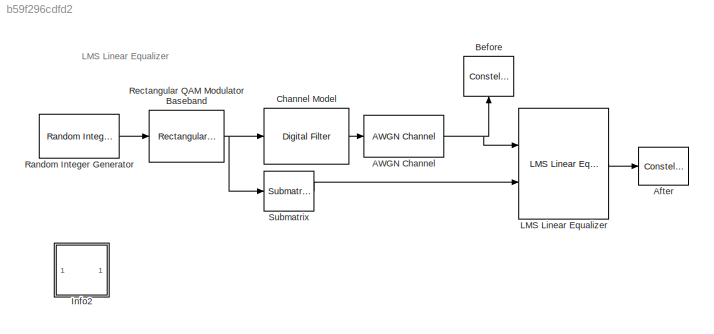
MODEL slx_b59f296cdfd2
KIND model
BLOCK [Reference] AWGN Channel  REF=commchan3/AWGN
Channel
  EbNodB = 10
  EsNodB = 10
  InputProcessing = Columns as channels (frame based)
  Ports = [1, 1]
  Ps = 1
  SNRdB = 40
  SourceBlock = commchan3/AWGN\nChannel
  SourceType = AWGN Channel
  Tsym = 1
  UserDataPersistent = on
  bitsPerSym = 1
  noiseMode = Signal to noise ratio  (SNR)
  seed = 67
  variance = 1
BLOCK [ConstellationDiagram] After
  Diagnostics = AllowInheritedTsInSrc
  Ports = [1]
  Tag = ScatterPlot
BLOCK [ConstellationDiagram] Before
  Diagnostics = AllowInheritedTsInSrc
  Ports = [1]
  Tag = ScatterPlot
BLOCK [Reference] Channel Model  REF=dsparch4/Digital Filter
  AllPoleFiltStruct = Direct form transposed
  BiQuadCoeffs = [1 0.3 0.4 1 0.1 0.2]
  CoeffSource = Specify via dialog
  DenCoeffs = [1 0.1]
  FIRFiltStruct = Direct form transposed
  FiltPerSampPopup = One filter per frame
  FilterSource = Specify via dialog
  IC = 0
  ICden = 0
  ICnum = 0
  IIRFiltStruct = Direct form I transposed
  InputProcessing = Columns as channels (frame based)
  LatticeCoeffs = [0.2 0.4]
  LockScale = off
  NumCoeffs = [1 -.3 .1 .2j]
  Ports = [1, 1]
  ScaleValues = 1
  SourceBlock = dsparch4/Digital Filter
  SourceType = Digital Filter
  TypePopup = FIR (all zeros)
  UserDataPersistent = on
  accumFracLength = 30
  accumMode = Same as product output
  accumWordLength = 32
  additionalParams = off
  allowOverrides = on
  denIgnore = on
  dfiltObjectName = dfilt.dffir([1 2 1])
  firstCoeffFracLength = 15
  firstCoeffMode = Same as input
  firstCoeffWordLength = 16
  memoryFracLength = 15
  memoryMode = Same as input
  memoryWordLength = 16
  multiplicandFracLength = 30
  multiplicandMode = Same as output
  multiplicandWordLength = 32
  outputFracLength = 15
  outputMode = Same as input
  outputWordLength = 16
  overflowMode = off
  prodOutputFracLength = 30
  prodOutputMode = Same as input
  prodOutputWordLength = 32
  roundingMode = Floor
  scaleValueFracLength = 14
  secondCoeffFracLength = 15
  secondCoeffMode = Same as numerator
  secondCoeffWordLength = 16
  showAcc = off
  showCoeff = off
  showMem = off
  showMpy = off
  showOut = off
  stageIOMode = Same as input
  stageIOWordLength = 16
  stageInFracLength = 15
  stageOutFracLength = 15
  tapSumFracLength = 30
  tapSumMode = Same as input
  tapSumWordLength = 32
  thirdCoeffFracLength = 15
  thirdCoeffMode = Same as input
  thirdCoeffWordLength = 16
BLOCK [SubSystem] Info2
  AncestorBlock = commblksprivate/Info
  OpenFcn = helpview([docroot '/toolbox/comm/comm.map'], 'doc_lmseq')
  Ports = []
  RequestExecContextInheritance = off
BLOCK [Reference] LMS Linear Equalizer  REF=commeq2/LMS Linear 
Equalizer
  Ports = [2, 1]
  SourceBlock = commeq2/LMS Linear \nEqualizer
  SourceType = LMS Linear Equalizer
  delay = 2
  initWeights = 0
  leakage = 1
  mode = off
  nSamp = 1
  nTaps = 6
  outErr = off
  outWeights = off
  sigConst = qammod([0:15],16)
  stepSize = 0.01
BLOCK [Reference] Random Integer Generator  REF=commrandsrc2/Random Integer
Generator
  Ports = [0, 1]
  SourceBlock = commrandsrc2/Random Integer\nGenerator
  SourceType = Random Integer Generator
  Ts = 1/1000
  frameBased = on
  mul = 16
  orient = off
  outDataType = double
  sampPerFrame = 1000
  seed = 12345
BLOCK [Reference] Rectangular QAM Modulator Baseband  REF=commdigbbndam3/Rectangular QAM
Modulator
Baseband
  AvgPow = 1
  Enc = Binary
  InType = Integer
  M = 16
  Mapping = [0:15]
  MinDist = 2
  PeakPow = 1
  Ph = 0
  Ports = [1, 1]
  PowType = Average Power
  SourceBlock = commdigbbndam3/Rectangular QAM\nModulator\nBaseband
  SourceType = Rectangular QAM Modulator Baseband
  outDtype = double
  outFracLen = 15
  outFracLenMode = Best precision
  outUDDataType = sfix(16)
  outWordLen = 16
BLOCK [Reference] Submatrix  REF=dspmtrx3/Submatrix
  ColEndIndex = 1
  ColEndMode = Last
  ColSpan = Range of columns
  ColStartIndex = 1
  ColStartMode = First
  Ports = [1, 1]
  RowEndIndex = 100
  RowEndMode = Index
  RowSpan = Range of rows
  RowStartIndex = 1
  RowStartMode = First
  SourceBlock = dspmtrx3/Submatrix
  SourceType = Submatrix
ANNOTATION (root): LMS Linear Equalizer
NET AWGN Channel:1 -> Before:1, LMS Linear Equalizer:1
LINE Channel Model:1 -> AWGN Channel:1
LINE LMS Linear Equalizer:1 -> After:1
LINE Random Integer Generator:1 -> Rectangular QAM Modulator Baseband:1
NET Rectangular QAM Modulator Baseband:1 -> Channel Model:1, Submatrix:1
LINE Submatrix:1 -> LMS Linear Equalizer:2
note: NET lines group one-source signal fan-out (src -> all destinations, sorted); 1:1 wires keep LINE
